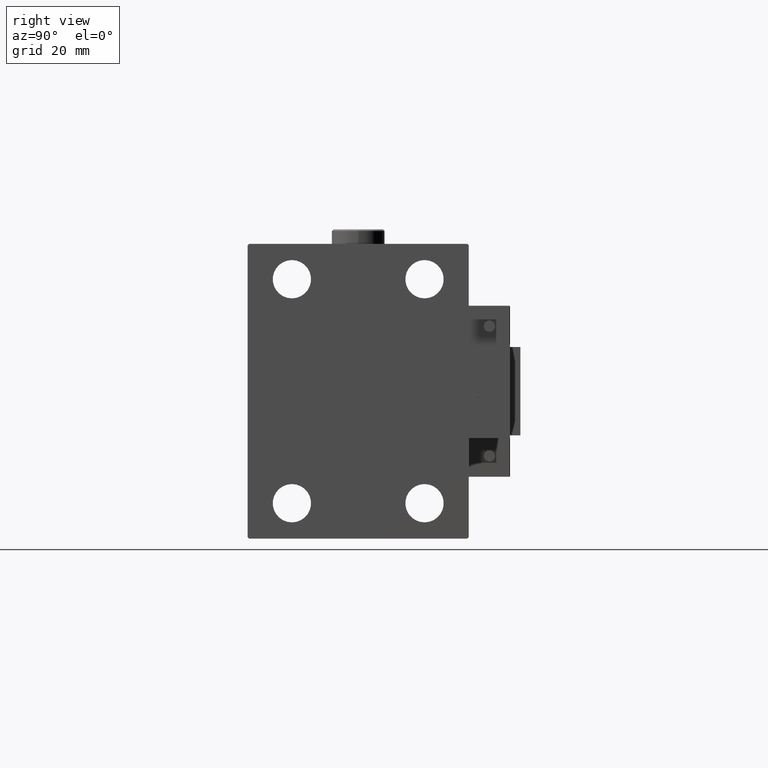
[diagram: clean part render]
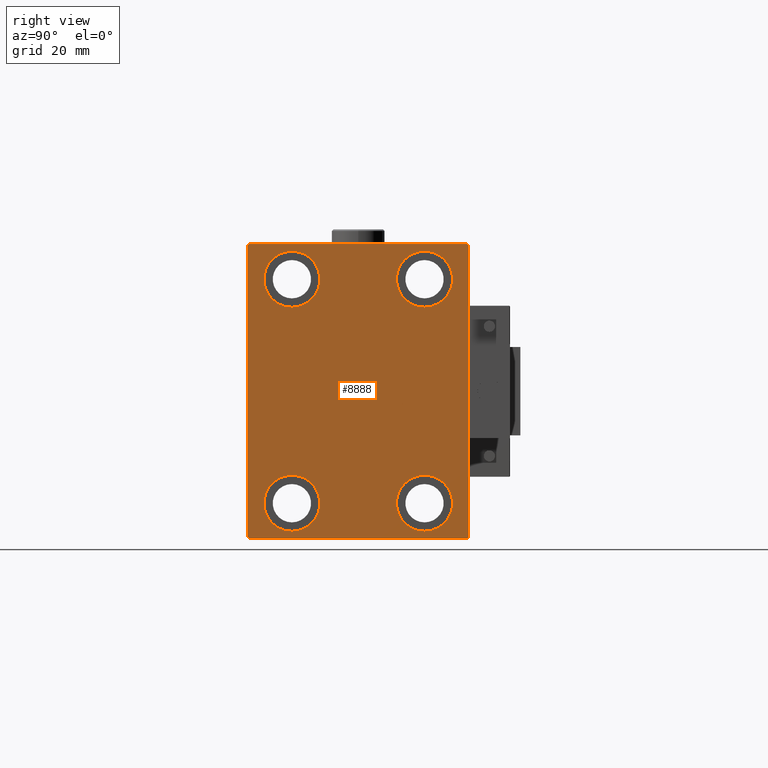
[diagram: same view with one face highlighted and labeled with its STEP entity id]
A machine part, right view. The second image highlights one B-rep face of the part: STEP entity #8888.
In plain terms, the highlighted planar face has unit normal (1, 0, 0).
Its self-contained STEP definition (entity closure, byte-faithful):
#16 = CARTESIAN_POINT ( 'NONE',  ( 93.00000000000000000, -22.50000000000000711, -37.99999999999999289 ) ) ;
#22 = CARTESIAN_POINT ( 'NONE',  ( 93.00000000000000000, 22.50000000000000355, 47.49999999999999289 ) ) ;
#598 = CARTESIAN_POINT ( 'NONE',  ( 93.00000000000000000, 37.00000000000000711, 50.00000000000000711 ) ) ;
#1158 = CIRCLE ( 'NONE', #19147, 9.500000000000001776 ) ;
#1242 = DIRECTION ( 'NONE',  ( 0.000000000000000000, 0.000000000000000000, 1.000000000000000000 ) ) ;
#1629 = EDGE_LOOP ( 'NONE', ( #48449, #6076, #8366, #24490, #3343, #52395, #35483, #36896 ) ) ;
#2194 = CARTESIAN_POINT ( 'NONE',  ( 93.00000000000000000, 22.49999999999999645, -37.99999999999999289 ) ) ;
#2246 = ORIENTED_EDGE ( 'NONE', *, *, #27041, .T. ) ;
#2671 = LINE ( 'NONE', #3473, #10491 ) ;
#3050 = VECTOR ( 'NONE', #7751, 1000.000000000000114 ) ;
#3176 = VERTEX_POINT ( 'NONE', #28492 ) ;
#3343 = ORIENTED_EDGE ( 'NONE', *, *, #14870, .T. ) ;
#3461 = FACE_OUTER_BOUND ( 'NONE', #1629, .T. ) ;
#3473 = CARTESIAN_POINT ( 'NONE',  ( 93.00000000000000000, -43.49999999999946709, 43.50000000000068212 ) ) ;
#3959 = AXIS2_PLACEMENT_3D ( 'NONE', #10762, #30634, #35188 ) ;
#4042 = LINE ( 'NONE', #48906, #30577 ) ;
#4571 = LINE ( 'NONE', #20926, #10664 ) ;
#4624 = CARTESIAN_POINT ( 'NONE',  ( 93.00000000000000000, -22.50000000000000711, -37.99999999999999289 ) ) ;
#4654 = CARTESIAN_POINT ( 'NONE',  ( 93.00000000000000000, -22.49999999999999645, 37.99999999999999289 ) ) ;
#4851 = CARTESIAN_POINT ( 'NONE',  ( 93.00000000000000000, -22.50000000000000711, -47.49999999999999289 ) ) ;
#5533 = CIRCLE ( 'NONE', #43273, 9.500000000000001776 ) ;
#5789 = CARTESIAN_POINT ( 'NONE',  ( 93.00000000000000000, 22.49999999999999645, -47.49999999999999289 ) ) ;
#6076 = ORIENTED_EDGE ( 'NONE', *, *, #40771, .T. ) ;
#6367 = CIRCLE ( 'NONE', #34672, 9.500000000000001776 ) ;
#6473 = ORIENTED_EDGE ( 'NONE', *, *, #8632, .T. ) ;
#6489 = CARTESIAN_POINT ( 'NONE',  ( 93.00000000000000000, 37.50000000000000711, -49.50000000000001421 ) ) ;
#6959 = DIRECTION ( 'NONE',  ( 1.000000000000000000, 0.000000000000000000, 0.000000000000000000 ) ) ;
#6964 = CARTESIAN_POINT ( 'NONE',  ( 93.00000000000000000, -37.50000000000000711, -50.00000000000000711 ) ) ;
#7480 = EDGE_CURVE ( 'NONE', #13391, #49169, #27857, .T. ) ;
#7751 = DIRECTION ( 'NONE',  ( -0.000000000000000000, 0.7071067811865474617, 0.7071067811865474617 ) ) ;
#8019 = CARTESIAN_POINT ( 'NONE',  ( 93.00000000000000000, 43.49999999999974420, 43.50000000000035527 ) ) ;
#8366 = ORIENTED_EDGE ( 'NONE', *, *, #34946, .T. ) ;
#8632 = EDGE_CURVE ( 'NONE', #14654, #16098, #19233, .T. ) ;
#8800 = AXIS2_PLACEMENT_3D ( 'NONE', #38609, #25959, #42384 ) ;
#8888 = ADVANCED_FACE ( 'NONE', ( #43758, #48327, #11513, #44299, #3461 ), #19552, .T. ) ;
#9213 = DIRECTION ( 'NONE',  ( -1.000000000000000000, -0.000000000000000000, -0.000000000000000000 ) ) ;
#9315 = CARTESIAN_POINT ( 'NONE',  ( 93.00000000000000000, -37.50000000000000711, -49.50000000000002132 ) ) ;
#10491 = VECTOR ( 'NONE', #19826, 999.9999999999998863 ) ;
#10664 = VECTOR ( 'NONE', #15402, 1000.000000000000000 ) ;
#10762 = CARTESIAN_POINT ( 'NONE',  ( 93.00000000000000000, -22.49999999999999645, 37.99999999999999289 ) ) ;
#11199 = ORIENTED_EDGE ( 'NONE', *, *, #33697, .T. ) ;
#11236 = DIRECTION ( 'NONE',  ( -1.000000000000000000, -0.000000000000000000, -0.000000000000000000 ) ) ;
#11513 = FACE_BOUND ( 'NONE', #48084, .T. ) ;
#11629 = VECTOR ( 'NONE', #40662, 1000.000000000000000 ) ;
#12388 = ORIENTED_EDGE ( 'NONE', *, *, #17803, .T. ) ;
#13227 = DIRECTION ( 'NONE',  ( 0.000000000000000000, 0.000000000000000000, 1.000000000000000000 ) ) ;
#13391 = VERTEX_POINT ( 'NONE', #38456 ) ;
#14540 = VERTEX_POINT ( 'NONE', #21526 ) ;
#14654 = VERTEX_POINT ( 'NONE', #4851 ) ;
#14870 = EDGE_CURVE ( 'NONE', #21692, #13391, #27342, .T. ) ;
#15402 = DIRECTION ( 'NONE',  ( 0.000000000000000000, -1.387778780781445676E-16, 1.000000000000000000 ) ) ;
#16098 = VERTEX_POINT ( 'NONE', #41852 ) ;
#16862 = LINE ( 'NONE', #8019, #29579 ) ;
#17329 = CIRCLE ( 'NONE', #8800, 9.500000000000001776 ) ;
#17779 = CIRCLE ( 'NONE', #3959, 9.500000000000001776 ) ;
#17803 = EDGE_CURVE ( 'NONE', #3176, #28500, #17329, .T. ) ;
#18762 = DIRECTION ( 'NONE',  ( 0.000000000000000000, 1.000000000000000000, 9.251858538542970348E-17 ) ) ;
#19147 = AXIS2_PLACEMENT_3D ( 'NONE', #2194, #38457, #34679 ) ;
#19233 = CIRCLE ( 'NONE', #28667, 9.500000000000001776 ) ;
#19279 = DIRECTION ( 'NONE',  ( 0.000000000000000000, 0.000000000000000000, 1.000000000000000000 ) ) ;
#19283 = CARTESIAN_POINT ( 'NONE',  ( 93.00000000000000000, 0.000000000000000000, 0.000000000000000000 ) ) ;
#19552 = PLANE ( 'NONE',  #51040 ) ;
#19777 = VERTEX_POINT ( 'NONE', #42723 ) ;
#19826 = DIRECTION ( 'NONE',  ( 0.000000000000000000, -0.7071067811865574537, -0.7071067811865376918 ) ) ;
#20737 = CARTESIAN_POINT ( 'NONE',  ( 93.00000000000000000, -43.49999999999950262, -43.50000000000070344 ) ) ;
#20926 = CARTESIAN_POINT ( 'NONE',  ( 93.00000000000000000, 37.50000000000000711, -50.00000000000000000 ) ) ;
#21248 = DIRECTION ( 'NONE',  ( -1.000000000000000000, -0.000000000000000000, -0.000000000000000000 ) ) ;
#21526 = CARTESIAN_POINT ( 'NONE',  ( 93.00000000000000000, -36.99999999999997868, 49.99999999999999289 ) ) ;
#21692 = VERTEX_POINT ( 'NONE', #35159 ) ;
#21908 = EDGE_LOOP ( 'NONE', ( #37753, #12388 ) ) ;
#23305 = DIRECTION ( 'NONE',  ( 0.000000000000000000, 0.000000000000000000, -1.000000000000000000 ) ) ;
#23578 = AXIS2_PLACEMENT_3D ( 'NONE', #4624, #21248, #42218 ) ;
#23662 = EDGE_LOOP ( 'NONE', ( #6473, #37158 ) ) ;
#23894 = VERTEX_POINT ( 'NONE', #36259 ) ;
#24151 = DIRECTION ( 'NONE',  ( 0.000000000000000000, 0.000000000000000000, -1.000000000000000000 ) ) ;
#24368 = DIRECTION ( 'NONE',  ( -0.000000000000000000, -0.7071067811865525687, 0.7071067811865425767 ) ) ;
#24490 = ORIENTED_EDGE ( 'NONE', *, *, #28717, .T. ) ;
#25001 = EDGE_CURVE ( 'NONE', #28500, #3176, #1158, .T. ) ;
#25959 = DIRECTION ( 'NONE',  ( -1.000000000000000000, -0.000000000000000000, -0.000000000000000000 ) ) ;
#26095 = VERTEX_POINT ( 'NONE', #22 ) ;
#26941 = EDGE_CURVE ( 'NONE', #49169, #38024, #4571, .T. ) ;
#27041 = EDGE_CURVE ( 'NONE', #38160, #26095, #5533, .T. ) ;
#27312 = EDGE_CURVE ( 'NONE', #38024, #49075, #16862, .T. ) ;
#27342 = LINE ( 'NONE', #6964, #50723 ) ;
#27477 = EDGE_LOOP ( 'NONE', ( #11199, #52487 ) ) ;
#27857 = LINE ( 'NONE', #36728, #3050 ) ;
#27890 = AXIS2_PLACEMENT_3D ( 'NONE', #4654, #9213, #13227 ) ;
#28492 = CARTESIAN_POINT ( 'NONE',  ( 93.00000000000000000, 22.49999999999999645, -28.49999999999998934 ) ) ;
#28500 = VERTEX_POINT ( 'NONE', #5789 ) ;
#28667 = AXIS2_PLACEMENT_3D ( 'NONE', #16, #49713, #29254 ) ;
#28717 = EDGE_CURVE ( 'NONE', #46074, #21692, #36624, .T. ) ;
#28939 = EDGE_CURVE ( 'NONE', #19777, #23894, #51110, .T. ) ;
#29254 = DIRECTION ( 'NONE',  ( 0.000000000000000000, 0.000000000000000000, 1.000000000000000000 ) ) ;
#29579 = VECTOR ( 'NONE', #24368, 999.9999999999998863 ) ;
#29951 = CARTESIAN_POINT ( 'NONE',  ( 93.00000000000000000, 22.50000000000000355, 37.99999999999999289 ) ) ;
#30577 = VECTOR ( 'NONE', #24151, 1000.000000000000000 ) ;
#30634 = DIRECTION ( 'NONE',  ( -1.000000000000000000, -0.000000000000000000, -0.000000000000000000 ) ) ;
#31108 = CARTESIAN_POINT ( 'NONE',  ( 93.00000000000000000, 22.50000000000000355, 37.99999999999999289 ) ) ;
#31232 = VERTEX_POINT ( 'NONE', #39353 ) ;
#32086 = DIRECTION ( 'NONE',  ( 0.000000000000000000, -1.000000000000000000, -1.850371707708594316E-16 ) ) ;
#33697 = EDGE_CURVE ( 'NONE', #23894, #19777, #17779, .T. ) ;
#34201 = EDGE_CURVE ( 'NONE', #49075, #14540, #47978, .T. ) ;
#34672 = AXIS2_PLACEMENT_3D ( 'NONE', #29951, #38026, #1242 ) ;
#34679 = DIRECTION ( 'NONE',  ( 0.000000000000000000, 0.000000000000000000, 1.000000000000000000 ) ) ;
#34946 = EDGE_CURVE ( 'NONE', #31232, #46074, #4042, .T. ) ;
#35159 = CARTESIAN_POINT ( 'NONE',  ( 93.00000000000000000, -37.00000000000000711, -50.00000000000000711 ) ) ;
#35188 = DIRECTION ( 'NONE',  ( 0.000000000000000000, 0.000000000000000000, 1.000000000000000000 ) ) ;
#35483 = ORIENTED_EDGE ( 'NONE', *, *, #26941, .T. ) ;
#36259 = CARTESIAN_POINT ( 'NONE',  ( 93.00000000000000000, -22.49999999999999645, 28.49999999999998934 ) ) ;
#36624 = LINE ( 'NONE', #20737, #11629 ) ;
#36728 = CARTESIAN_POINT ( 'NONE',  ( 93.00000000000000000, 43.50000000000000711, -43.50000000000000711 ) ) ;
#36896 = ORIENTED_EDGE ( 'NONE', *, *, #27312, .T. ) ;
#37158 = ORIENTED_EDGE ( 'NONE', *, *, #46661, .T. ) ;
#37753 = ORIENTED_EDGE ( 'NONE', *, *, #25001, .T. ) ;
#38024 = VERTEX_POINT ( 'NONE', #39700 ) ;
#38026 = DIRECTION ( 'NONE',  ( -1.000000000000000000, -0.000000000000000000, -0.000000000000000000 ) ) ;
#38160 = VERTEX_POINT ( 'NONE', #48847 ) ;
#38456 = CARTESIAN_POINT ( 'NONE',  ( 93.00000000000000000, 37.00000000000002132, -50.00000000000000000 ) ) ;
#38457 = DIRECTION ( 'NONE',  ( -1.000000000000000000, -0.000000000000000000, -0.000000000000000000 ) ) ;
#38609 = CARTESIAN_POINT ( 'NONE',  ( 93.00000000000000000, 22.49999999999999645, -37.99999999999999289 ) ) ;
#39353 = CARTESIAN_POINT ( 'NONE',  ( 93.00000000000000000, -37.50000000000000711, 49.49999999999997868 ) ) ;
#39700 = CARTESIAN_POINT ( 'NONE',  ( 93.00000000000000000, 37.49999999999999289, 49.50000000000002842 ) ) ;
#40095 = ORIENTED_EDGE ( 'NONE', *, *, #45085, .T. ) ;
#40662 = DIRECTION ( 'NONE',  ( -0.000000000000000000, 0.7071067811865573427, -0.7071067811865378028 ) ) ;
#40771 = EDGE_CURVE ( 'NONE', #14540, #31232, #2671, .T. ) ;
#41852 = CARTESIAN_POINT ( 'NONE',  ( 93.00000000000000000, -22.50000000000000711, -28.49999999999998934 ) ) ;
#42218 = DIRECTION ( 'NONE',  ( 0.000000000000000000, 0.000000000000000000, 1.000000000000000000 ) ) ;
#42384 = DIRECTION ( 'NONE',  ( 0.000000000000000000, 0.000000000000000000, 1.000000000000000000 ) ) ;
#42484 = CIRCLE ( 'NONE', #23578, 9.500000000000001776 ) ;
#42723 = CARTESIAN_POINT ( 'NONE',  ( 93.00000000000000000, -22.49999999999999645, 47.49999999999999289 ) ) ;
#43273 = AXIS2_PLACEMENT_3D ( 'NONE', #31108, #11236, #19279 ) ;
#43758 = FACE_BOUND ( 'NONE', #21908, .T. ) ;
#43928 = CARTESIAN_POINT ( 'NONE',  ( 93.00000000000000000, 37.49999999999999289, 50.00000000000000711 ) ) ;
#44299 = FACE_BOUND ( 'NONE', #23662, .T. ) ;
#45085 = EDGE_CURVE ( 'NONE', #26095, #38160, #6367, .T. ) ;
#46074 = VERTEX_POINT ( 'NONE', #9315 ) ;
#46661 = EDGE_CURVE ( 'NONE', #16098, #14654, #42484, .T. ) ;
#46880 = VECTOR ( 'NONE', #32086, 1000.000000000000000 ) ;
#47978 = LINE ( 'NONE', #43928, #46880 ) ;
#48084 = EDGE_LOOP ( 'NONE', ( #2246, #40095 ) ) ;
#48327 = FACE_BOUND ( 'NONE', #27477, .T. ) ;
#48449 = ORIENTED_EDGE ( 'NONE', *, *, #34201, .T. ) ;
#48847 = CARTESIAN_POINT ( 'NONE',  ( 93.00000000000000000, 22.50000000000000355, 28.49999999999998934 ) ) ;
#48906 = CARTESIAN_POINT ( 'NONE',  ( 93.00000000000000000, -37.50000000000000711, 49.99999999999999289 ) ) ;
#49075 = VERTEX_POINT ( 'NONE', #598 ) ;
#49169 = VERTEX_POINT ( 'NONE', #6489 ) ;
#49713 = DIRECTION ( 'NONE',  ( -1.000000000000000000, -0.000000000000000000, -0.000000000000000000 ) ) ;
#50723 = VECTOR ( 'NONE', #18762, 1000.000000000000000 ) ;
#51040 = AXIS2_PLACEMENT_3D ( 'NONE', #19283, #6959, #23305 ) ;
#51110 = CIRCLE ( 'NONE', #27890, 9.500000000000001776 ) ;
#52395 = ORIENTED_EDGE ( 'NONE', *, *, #7480, .T. ) ;
#52487 = ORIENTED_EDGE ( 'NONE', *, *, #28939, .T. ) ;